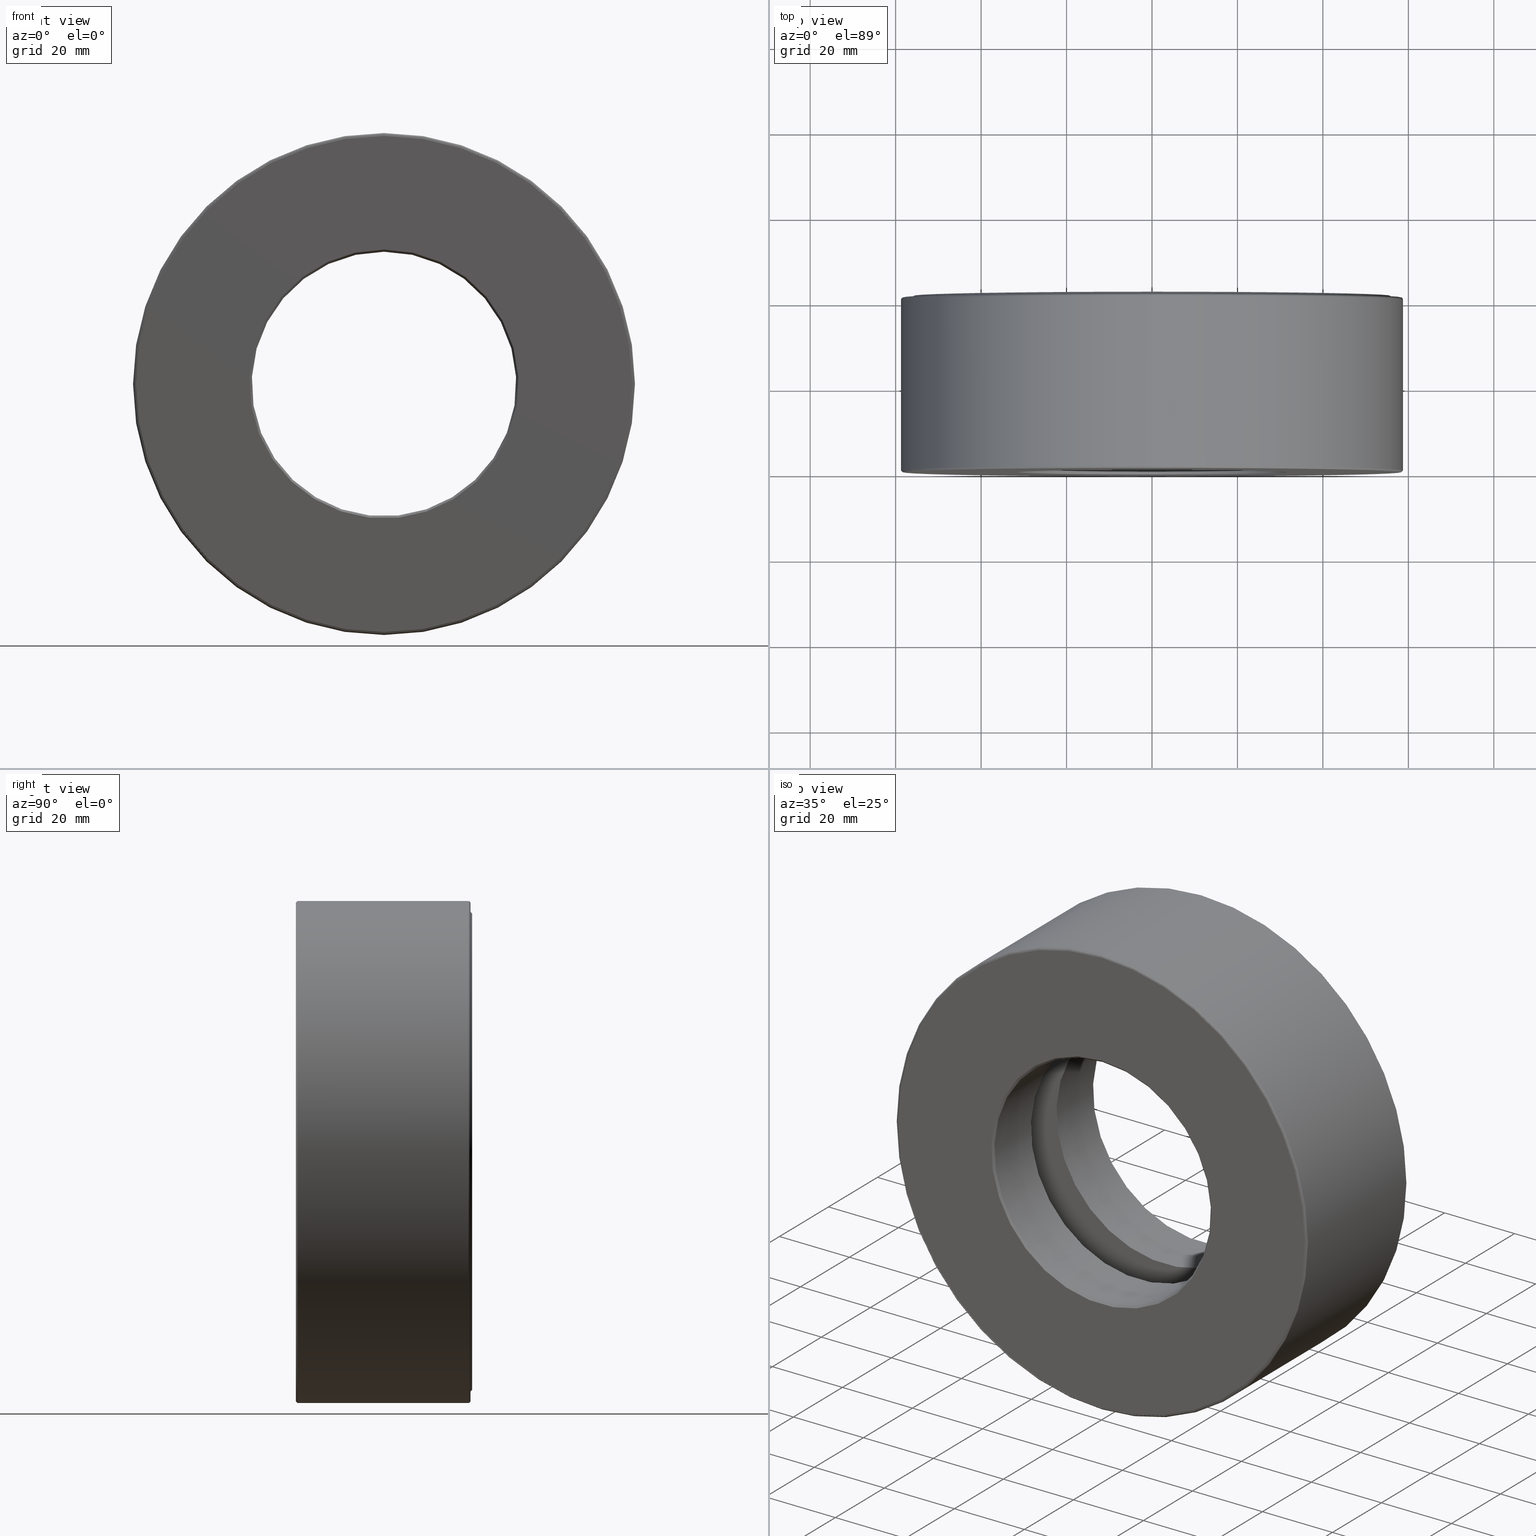
[diagram: canonical four-view strip — front | top / right | iso, engineering-drawing reading convention]
A machine part, canonical four-view strip (front | top / right | iso — engineering-drawing reading convention). The complete STEP part file that produces these views, byte-faithful:
ISO-10303-21;
HEADER;
FILE_DESCRIPTION (( 'STEP AP203' ),
    '1' );
FILE_NAME ('T-100-46.step',
    '2016-06-29T18:27:40',
    ( '' ),
    ( '' ),
    'SwSTEP 2.0',
    'SolidWorks 2016',
    '' );
FILE_SCHEMA (( 'CONFIG_CONTROL_DESIGN' ));
ENDSEC;

DATA;
#1 = CYLINDRICAL_SURFACE ( 'NONE', #538, 2.292499999999999500 ) ;
#2 = EDGE_LOOP ( 'NONE', ( #514 ) ) ;
#3 = EDGE_LOOP ( 'NONE', ( #350 ) ) ;
#4 = CARTESIAN_POINT ( 'NONE',  ( -5.459571483445795000E-032, 7.416540451549464300E-017, 0.0000000000000000000 ) ) ;
#5 =( LENGTH_UNIT ( ) NAMED_UNIT ( * ) SI_UNIT ( $, .METRE. ) );
#6 = DIRECTION ( 'NONE',  ( -0.0000000000000000000, 1.000000000000000000, -0.0000000000000000000 ) ) ;
#7 = DIRECTION ( 'NONE',  ( 0.0000000000000000000, 0.0000000000000000000, 1.000000000000000000 ) ) ;
#8 = FACE_BOUND ( 'NONE', #513, .T. ) ;
#9 = EDGE_LOOP ( 'NONE', ( #443 ) ) ;
#10 = MANIFOLD_SOLID_BREP ( 'BALLS[3]', #405 ) ;
#11 = DIRECTION ( 'NONE',  ( 0.0000000000000000000, 0.0000000000000000000, 1.000000000000000000 ) ) ;
#12 = COORDINATED_UNIVERSAL_TIME_OFFSET ( 5, 0, .BEHIND. ) ;
#13 = VERTEX_POINT ( 'NONE', #337 ) ;
#14 = CIRCLE ( 'NONE', #31, 1.238750000000000000 ) ;
#15 = AXIS2_PLACEMENT_3D ( 'NONE', #107, #472, #521 ) ;
#16 = ORIENTED_EDGE ( 'NONE', *, *, #184, .F. ) ;
#17 = APPROVAL_ROLE ( '' ) ;
#18 = APPLICATION_PROTOCOL_DEFINITION ( 'international standard', 'config_control_design', 1994, #439 ) ;
#19 = AXIS2_PLACEMENT_3D ( 'NONE', #145, #105, #606 ) ;
#20 = CARTESIAN_POINT ( 'NONE',  ( 0.0000000000000000000, 0.6062500000000001800, 0.0000000000000000000 ) ) ;
#21 = VERTEX_POINT ( 'NONE', #509 ) ;
#22 = EDGE_CURVE ( 'NONE', #67, #67, #270, .T. ) ;
#23 = FACE_BOUND ( 'NONE', #329, .T. ) ;
#24 = DIRECTION ( 'NONE',  ( -0.0000000000000000000, 1.000000000000000000, -0.0000000000000000000 ) ) ;
#25 = AXIS2_PLACEMENT_3D ( 'NONE', #169, #588, #262 ) ;
#26 = PERSON_AND_ORGANIZATION ( #407, #165 ) ;
#27 = CARTESIAN_POINT ( 'NONE',  ( 0.0000000000000000000, 1.018749999999999800, 0.0000000000000000000 ) ) ;
#28 = FACE_BOUND ( 'NONE', #260, .T. ) ;
#29 = DIRECTION ( 'NONE',  ( 0.0000000000000000000, -1.000000000000000000, 0.0000000000000000000 ) ) ;
#30 = ORIENTED_EDGE ( 'NONE', *, *, #348, .T. ) ;
#31 = AXIS2_PLACEMENT_3D ( 'NONE', #453, #591, #313 ) ;
#32 = DIRECTION ( 'NONE',  ( -0.0000000000000000000, 1.000000000000000000, -0.0000000000000000000 ) ) ;
#33 = ORIENTED_EDGE ( 'NONE', *, *, #298, .F. ) ;
#34 = DIRECTION ( 'NONE',  ( 0.0000000000000000000, -1.000000000000000000, 0.0000000000000000000 ) ) ;
#35 = CARTESIAN_POINT ( 'NONE',  ( 0.0000000000000000000, 1.589999999999999600, 0.0000000000000000000 ) ) ;
#36 = DIRECTION ( 'NONE',  ( 0.0000000000000000000, 0.0000000000000000000, 1.000000000000000000 ) ) ;
#37 = LOCAL_TIME ( 14, 27, 40.00000000000000000, #403 ) ;
#38 = CIRCLE ( 'NONE', #85, 1.218750000000000000 ) ;
#39 = FACE_OUTER_BOUND ( 'NONE', #442, .T. ) ;
#40 = AXIS2_PLACEMENT_3D ( 'NONE', #390, #332, #478 ) ;
#41 = EDGE_CURVE ( 'NONE', #194, #194, #14, .T. ) ;
#42 = ADVANCED_FACE ( 'NONE', ( #166, #188 ), #171, .T. ) ;
#43 = DIRECTION ( 'NONE',  ( 0.0000000000000000000, 0.0000000000000000000, 1.000000000000000000 ) ) ;
#44 = CARTESIAN_POINT ( 'NONE',  ( 0.0000000000000000000, 1.536999999999999500, 0.0000000000000000000 ) ) ;
#45 = CIRCLE ( 'NONE', #506, 1.664749999999999700 ) ;
#46 = ORIENTED_EDGE ( 'NONE', *, *, #389, .F. ) ;
#47 = EDGE_LOOP ( 'NONE', ( #291 ) ) ;
#48 = AXIS2_PLACEMENT_3D ( 'NONE', #296, #71, #598 ) ;
#49 = DIRECTION ( 'NONE',  ( 0.0000000000000000000, 0.0000000000000000000, 1.000000000000000000 ) ) ;
#50 = AXIS2_PLACEMENT_3D ( 'NONE', #456, #497, #359 ) ;
#51 = DIRECTION ( 'NONE',  ( 0.0000000000000000000, 0.0000000000000000000, 1.000000000000000000 ) ) ;
#52 = ORIENTED_EDGE ( 'NONE', *, *, #573, .T. ) ;
#53 = CARTESIAN_POINT ( 'NONE',  ( 0.0000000000000000000, 0.02000000000000060800, 0.0000000000000000000 ) ) ;
#54 = CARTESIAN_POINT ( 'NONE',  ( 0.0000000000000000000, 1.589999999999999600, 2.312500000000000000 ) ) ;
#55 = EDGE_CURVE ( 'NONE', #293, #293, #138, .T. ) ;
#56 = DIRECTION ( 'NONE',  ( 0.0000000000000000000, -1.000000000000000000, 0.0000000000000000000 ) ) ;
#57 = DIRECTION ( 'NONE',  ( 0.0000000000000000000, 0.0000000000000000000, 1.000000000000000000 ) ) ;
#58 = AXIS2_PLACEMENT_3D ( 'NONE', #286, #56, #344 ) ;
#59 = FACE_OUTER_BOUND ( 'NONE', #47, .T. ) ;
#60 = FACE_OUTER_BOUND ( 'NONE', #413, .T. ) ;
#61 = ORIENTED_EDGE ( 'NONE', *, *, #488, .F. ) ;
#62 = PERSON_AND_ORGANIZATION_ROLE ( 'creator' ) ;
#63 = EDGE_CURVE ( 'NONE', #21, #21, #160, .T. ) ;
#64 = CALENDAR_DATE ( 2016, 29, 6 ) ;
#65 = CARTESIAN_POINT ( 'NONE',  ( 0.0000000000000000000, -1.259211184579621700E-016, 0.0000000000000000000 ) ) ;
#66 = PERSON_AND_ORGANIZATION_ROLE ( 'creator' ) ;
#67 = VERTEX_POINT ( 'NONE', #91 ) ;
#68 = ORIENTED_EDGE ( 'NONE', *, *, #22, .T. ) ;
#69 = SECURITY_CLASSIFICATION_LEVEL ( 'unclassified' ) ;
#70 = ORIENTED_EDGE ( 'NONE', *, *, #55, .T. ) ;
#71 = DIRECTION ( 'NONE',  ( -0.0000000000000000000, 1.000000000000000000, -0.0000000000000000000 ) ) ;
#72 = AXIS2_PLACEMENT_3D ( 'NONE', #207, #283, #114 ) ;
#73 = CALENDAR_DATE ( 2016, 29, 6 ) ;
#74 = CIRCLE ( 'NONE', #569, 2.287499999999999600 ) ;
#75 = DIRECTION ( 'NONE',  ( 0.0000000000000000000, -0.0000000000000000000, -1.000000000000000000 ) ) ;
#76 = ORIENTED_EDGE ( 'NONE', *, *, #325, .T. ) ;
#77 = DIRECTION ( 'NONE',  ( 0.0000000000000000000, 0.0000000000000000000, 1.000000000000000000 ) ) ;
#78 = DIRECTION ( 'NONE',  ( 0.0000000000000000000, 0.0000000000000000000, -1.000000000000000000 ) ) ;
#79 = AXIS2_PLACEMENT_3D ( 'NONE', #402, #34, #133 ) ;
#80 = DIRECTION ( 'NONE',  ( 0.0000000000000000000, 0.0000000000000000000, 1.000000000000000000 ) ) ;
#81 = ADVANCED_FACE ( 'NONE', ( #226, #8 ), #177, .F. ) ;
#82 = CARTESIAN_POINT ( 'NONE',  ( 0.0000000000000000000, 1.625000000000000200, 0.0000000000000000000 ) ) ;
#83 = VERTEX_POINT ( 'NONE', #423 ) ;
#84 = EDGE_LOOP ( 'NONE', ( #214 ) ) ;
#85 = AXIS2_PLACEMENT_3D ( 'NONE', #590, #32, #489 ) ;
#86 = DIRECTION ( 'NONE',  ( 0.0000000000000000000, 0.0000000000000000000, 1.000000000000000000 ) ) ;
#87 = CLOSED_SHELL ( 'NONE', ( #602 ) ) ;
#88 = ADVANCED_FACE ( 'NONE', ( #595, #485 ), #135, .F. ) ;
#89 = CARTESIAN_POINT ( 'NONE',  ( 0.0000000000000000000, 0.6062500000000001800, 1.664749999999999700 ) ) ;
#90 = DIRECTION ( 'NONE',  ( -0.0000000000000000000, 1.000000000000000000, -0.0000000000000000000 ) ) ;
#91 = CARTESIAN_POINT ( 'NONE',  ( 0.0000000000000000000, 1.589999999999999600, 2.292500000000000000 ) ) ;
#92 = ADVANCED_FACE ( 'NONE', ( #367, #469 ), #284, .T. ) ;
#93 = COORDINATED_UNIVERSAL_TIME_OFFSET ( 5, 0, .BEHIND. ) ;
#94 = FACE_BOUND ( 'NONE', #457, .T. ) ;
#95 = ADVANCED_FACE ( 'NONE', ( #39, #321 ), #273, .T. ) ;
#96 = EDGE_LOOP ( 'NONE', ( #52 ) ) ;
#97 = AXIS2_PLACEMENT_3D ( 'NONE', #545, #314, #36 ) ;
#98 = ADVANCED_FACE ( 'NONE', ( #94, #336 ), #386, .F. ) ;
#99 = DIRECTION ( 'NONE',  ( -0.0000000000000000000, 1.000000000000000000, -0.0000000000000000000 ) ) ;
#100 = AXIS2_PLACEMENT_3D ( 'NONE', #216, #305, #77 ) ;
#101 = PERSON_AND_ORGANIZATION ( #407, #165 ) ;
#102 = FACE_OUTER_BOUND ( 'NONE', #119, .T. ) ;
#103 = EDGE_LOOP ( 'NONE', ( #295 ) ) ;
#104 = CARTESIAN_POINT ( 'NONE',  ( 0.0000000000000000000, 0.6062500000000002900, 1.218750000000000000 ) ) ;
#105 = DIRECTION ( 'NONE',  ( -0.0000000000000000000, 1.000000000000000000, -0.0000000000000000000 ) ) ;
#106 =( NAMED_UNIT ( * ) PLANE_ANGLE_UNIT ( ) SI_UNIT ( $, .RADIAN. ) );
#107 = CARTESIAN_POINT ( 'NONE',  ( 0.0000000000000000000, 0.6062499999999999600, 0.0000000000000000000 ) ) ;
#108 = AXIS2_PLACEMENT_3D ( 'NONE', #429, #473, #476 ) ;
#109 = DIRECTION ( 'NONE',  ( 0.0000000000000000000, -0.0000000000000000000, -1.000000000000000000 ) ) ;
#110 = CONICAL_SURFACE ( 'NONE', #79, 2.197499999999999300, 0.7853981633974466100 ) ;
#111 = CONICAL_SURFACE ( 'NONE', #72, 2.287499999999999600, 0.7853981633974160800 ) ;
#112 = EDGE_LOOP ( 'NONE', ( #496 ) ) ;
#113 = DIRECTION ( 'NONE',  ( 0.0000000000000000000, 0.0000000000000000000, 1.000000000000000000 ) ) ;
#114 = DIRECTION ( 'NONE',  ( 0.0000000000000000000, 0.0000000000000000000, 1.000000000000000000 ) ) ;
#115 = DATE_AND_TIME ( #64, #299 ) ;
#116 = AXIS2_PLACEMENT_3D ( 'NONE', #565, #436, #438 ) ;
#117 = FACE_OUTER_BOUND ( 'NONE', #148, .T. ) ;
#118 = FACE_BOUND ( 'NONE', #527, .T. ) ;
#119 = EDGE_LOOP ( 'NONE', ( #209 ) ) ;
#120 = AXIS2_PLACEMENT_3D ( 'NONE', #27, #309, #75 ) ;
#121 = VERTEX_POINT ( 'NONE', #199 ) ;
#122 = CIRCLE ( 'NONE', #198, 2.312500000000000000 ) ;
#123 = EDGE_LOOP ( 'NONE', ( #374 ) ) ;
#124 = MANIFOLD_SOLID_BREP ( 'BALLS[1]', #87 ) ;
#125 = CARTESIAN_POINT ( 'NONE',  ( 0.0000000000000000000, 0.0000000000000000000, 0.0000000000000000000 ) ) ;
#126 = AXIS2_PLACEMENT_3D ( 'NONE', #125, #362, #446 ) ;
#127 = DIRECTION ( 'NONE',  ( 0.0000000000000000000, 0.0000000000000000000, 1.000000000000000000 ) ) ;
#128 = PRODUCT_DEFINITION_FORMATION_WITH_SPECIFIED_SOURCE ( 'ANY', '', #495, .NOT_KNOWN. ) ;
#129 = DIRECTION ( 'NONE',  ( -0.0000000000000000000, 1.000000000000000000, -0.0000000000000000000 ) ) ;
#130 = FACE_OUTER_BOUND ( 'NONE', #112, .T. ) ;
#131 = DIRECTION ( 'NONE',  ( 0.0000000000000000000, 0.0000000000000000000, 1.000000000000000000 ) ) ;
#132 = FACE_OUTER_BOUND ( 'NONE', #328, .T. ) ;
#133 = DIRECTION ( 'NONE',  ( 0.0000000000000000000, 0.0000000000000000000, -1.000000000000000000 ) ) ;
#134 = EDGE_LOOP ( 'NONE', ( #361 ) ) ;
#135 = PLANE ( 'NONE',  #520 ) ;
#136 = DIRECTION ( 'NONE',  ( -0.0000000000000000000, 1.000000000000000000, -0.0000000000000000000 ) ) ;
#137 = CIRCLE ( 'NONE', #225, 2.285499999999999900 ) ;
#138 = CIRCLE ( 'NONE', #192, 2.292499999999999500 ) ;
#139 = AXIS2_PLACEMENT_3D ( 'NONE', #53, #292, #158 ) ;
#140 = EDGE_LOOP ( 'NONE', ( #76 ) ) ;
#141 = CARTESIAN_POINT ( 'NONE',  ( 0.0000000000000000000, 1.604999999999999300, 1.218750000000000000 ) ) ;
#142 = DIMENSIONAL_EXPONENTS ( 1.000000000000000000, 0.0000000000000000000, 0.0000000000000000000, 0.0000000000000000000, 0.0000000000000000000, 0.0000000000000000000, 0.0000000000000000000 ) ;
#143 = DIRECTION ( 'NONE',  ( 0.0000000000000000000, 0.0000000000000000000, 1.000000000000000000 ) ) ;
#144 = PERSON_AND_ORGANIZATION ( #407, #165 ) ;
#145 = CARTESIAN_POINT ( 'NONE',  ( 0.0000000000000000000, 0.8124999999999997800, 0.0000000000000000000 ) ) ;
#146 = VERTEX_POINT ( 'NONE', #603 ) ;
#147 = FACE_BOUND ( 'NONE', #548, .T. ) ;
#148 = EDGE_LOOP ( 'NONE', ( #483 ) ) ;
#149 = AXIS2_PLACEMENT_3D ( 'NONE', #174, #57, #532 ) ;
#150 = DIRECTION ( 'NONE',  ( 0.0000000000000000000, 0.0000000000000000000, 1.000000000000000000 ) ) ;
#151 = AXIS2_PLACEMENT_3D ( 'NONE', #524, #522, #341 ) ;
#152 = PERSON_AND_ORGANIZATION ( #407, #165 ) ;
#153 = SPHERICAL_SURFACE ( 'NONE', #168, 0.3437499999999998300 ) ;
#154 = CARTESIAN_POINT ( 'NONE',  ( 0.0000000000000000000, 0.0000000000000000000, 0.0000000000000000000 ) ) ;
#155 = FACE_OUTER_BOUND ( 'NONE', #183, .T. ) ;
#156 = DIRECTION ( 'NONE',  ( -0.0000000000000000000, 1.000000000000000000, -0.0000000000000000000 ) ) ;
#157 = AXIS2_PLACEMENT_3D ( 'NONE', #231, #90, #229 ) ;
#158 = DIRECTION ( 'NONE',  ( 0.0000000000000000000, 0.0000000000000000000, -1.000000000000000000 ) ) ;
#159 = PERSON_AND_ORGANIZATION_ROLE ( 'design_owner' ) ;
#160 = CIRCLE ( 'NONE', #50, 2.214750000000000000 ) ;
#161 = EDGE_LOOP ( 'NONE', ( #196 ) ) ;
#162 = DIRECTION ( 'NONE',  ( 6.982962677686265900E-015, -0.0000000000000000000, 1.000000000000000000 ) ) ;
#163 = DATE_TIME_ROLE ( 'creation_date' ) ;
#164 = ORIENTED_EDGE ( 'NONE', *, *, #477, .T. ) ;
#165 = ORGANIZATION ( 'UNSPECIFIED', 'UNSPECIFIED', '' ) ;
#166 = FACE_BOUND ( 'NONE', #96, .T. ) ;
#167 = EDGE_LOOP ( 'NONE', ( #570 ) ) ;
#168 = AXIS2_PLACEMENT_3D ( 'NONE', #408, #78, #178 ) ;
#169 = CARTESIAN_POINT ( 'NONE',  ( 0.0000000000000000000, 1.589999999999999600, 0.0000000000000000000 ) ) ;
#170 = FACE_OUTER_BOUND ( 'NONE', #557, .T. ) ;
#171 = PLANE ( 'NONE',  #376 ) ;
#172 = EDGE_LOOP ( 'NONE', ( #324 ) ) ;
#173 = DIRECTION ( 'NONE',  ( 0.0000000000000000000, 0.0000000000000000000, 1.000000000000000000 ) ) ;
#174 = CARTESIAN_POINT ( 'NONE',  ( 0.0000000000000000000, 0.0000000000000000000, 0.0000000000000000000 ) ) ;
#175 = DIRECTION ( 'NONE',  ( 1.000000000000000000, 0.0000000000000000000, -1.047444401652939800E-014 ) ) ;
#176 = CC_DESIGN_PERSON_AND_ORGANIZATION_ASSIGNMENT ( #479, #159, ( #495 ) ) ;
#177 = PLANE ( 'NONE',  #244 ) ;
#178 = DIRECTION ( 'NONE',  ( 1.000000000000000000, 0.0000000000000000000, 0.0000000000000000000 ) ) ;
#179 = ADVANCED_FACE ( 'NONE', ( #502, #519 ), #481, .F. ) ;
#180 = PERSON_AND_ORGANIZATION ( #407, #165 ) ;
#181 = VERTEX_POINT ( 'NONE', #280 ) ;
#182 = EDGE_LOOP ( 'NONE', ( #504 ) ) ;
#183 = EDGE_LOOP ( 'NONE', ( #463 ) ) ;
#184 = EDGE_CURVE ( 'NONE', #593, #593, #568, .T. ) ;
#185 = ADVANCED_FACE ( 'NONE', ( #381, #202 ), #518, .F. ) ;
#186 = CARTESIAN_POINT ( 'NONE',  ( 0.0000000000000000000, -1.259211184579621700E-016, 2.297499999999999900 ) ) ;
#187 = DATE_AND_TIME ( #516, #37 ) ;
#188 = FACE_OUTER_BOUND ( 'NONE', #203, .T. ) ;
#189 =( GEOMETRIC_REPRESENTATION_CONTEXT ( 3 ) GLOBAL_UNCERTAINTY_ASSIGNED_CONTEXT ( ( #250 ) ) GLOBAL_UNIT_ASSIGNED_CONTEXT ( ( #380, #106, #433 ) ) REPRESENTATION_CONTEXT ( 'NONE', 'WORKASPACE' ) );
#190 = ORIENTED_EDGE ( 'NONE', *, *, #488, .T. ) ;
#191 = CC_DESIGN_APPROVAL ( #304, ( #128 ) ) ;
#192 = AXIS2_PLACEMENT_3D ( 'NONE', #306, #217, #80 ) ;
#193 = LOCAL_TIME ( 14, 27, 40.00000000000000000, #233 ) ;
#194 = VERTEX_POINT ( 'NONE', #211 ) ;
#195 = ORIENTED_EDGE ( 'NONE', *, *, #204, .T. ) ;
#196 = ORIENTED_EDGE ( 'NONE', *, *, #212, .F. ) ;
#197 = DIRECTION ( 'NONE',  ( -1.000000000000000000, 0.0000000000000000000, 6.982962677686265900E-015 ) ) ;
#198 = AXIS2_PLACEMENT_3D ( 'NONE', #566, #471, #243 ) ;
#199 = CARTESIAN_POINT ( 'NONE',  ( 0.0000000000000000000, 1.018749999999999800, 2.285499999999999900 ) ) ;
#200 = CALENDAR_DATE ( 2016, 29, 6 ) ;
#201 = CARTESIAN_POINT ( 'NONE',  ( 0.0000000000000000000, 1.604999999999999300, 0.0000000000000000000 ) ) ;
#202 = FACE_OUTER_BOUND ( 'NONE', #354, .T. ) ;
#203 = EDGE_LOOP ( 'NONE', ( #16 ) ) ;
#204 = EDGE_CURVE ( 'NONE', #546, #546, #349, .T. ) ;
#205 = DIRECTION ( 'NONE',  ( -0.0000000000000000000, 1.000000000000000000, -0.0000000000000000000 ) ) ;
#206 = DIRECTION ( 'NONE',  ( -0.0000000000000000000, 1.000000000000000000, -0.0000000000000000000 ) ) ;
#207 = CARTESIAN_POINT ( 'NONE',  ( 0.0000000000000000000, -1.248539903354370400E-016, 0.0000000000000000000 ) ) ;
#208 = EDGE_LOOP ( 'NONE', ( #285 ) ) ;
#209 = ORIENTED_EDGE ( 'NONE', *, *, #277, .T. ) ;
#210 = AXIS2_PLACEMENT_3D ( 'NONE', #4, #326, #49 ) ;
#211 = CARTESIAN_POINT ( 'NONE',  ( 0.0000000000000000000, 2.731847993664263200E-016, 1.238750000000000000 ) ) ;
#212 = EDGE_CURVE ( 'NONE', #468, #468, #252, .T. ) ;
#213 = CYLINDRICAL_SURFACE ( 'NONE', #583, 1.218750000000000000 ) ;
#214 = ORIENTED_EDGE ( 'NONE', *, *, #498, .T. ) ;
#215 = AXIS2_PLACEMENT_3D ( 'NONE', #452, #323, #581 ) ;
#216 = CARTESIAN_POINT ( 'NONE',  ( 0.0000000000000000000, 1.589999999999999600, 0.0000000000000000000 ) ) ;
#217 = DIRECTION ( 'NONE',  ( -0.0000000000000000000, 1.000000000000000000, -0.0000000000000000000 ) ) ;
#218 = DATE_AND_TIME ( #200, #345 ) ;
#219 = VERTEX_POINT ( 'NONE', #416 ) ;
#220 = DIRECTION ( 'NONE',  ( -0.0000000000000000000, 1.000000000000000000, 0.0000000000000000000 ) ) ;
#221 = ORIENTED_EDGE ( 'NONE', *, *, #511, .T. ) ;
#222 = ADVANCED_FACE ( 'NONE', ( #512, #241 ), #335, .T. ) ;
#223 = EDGE_LOOP ( 'NONE', ( #68 ) ) ;
#224 = VERTEX_POINT ( 'NONE', #282 ) ;
#225 = AXIS2_PLACEMENT_3D ( 'NONE', #44, #136, #279 ) ;
#226 = FACE_OUTER_BOUND ( 'NONE', #578, .T. ) ;
#227 = CARTESIAN_POINT ( 'NONE',  ( 0.0000000000000000000, 0.005000000000000282000, 2.292499999999999500 ) ) ;
#228 = ORIENTED_EDGE ( 'NONE', *, *, #63, .F. ) ;
#229 = DIRECTION ( 'NONE',  ( 0.0000000000000000000, 0.0000000000000000000, 1.000000000000000000 ) ) ;
#230 = ADVANCED_FACE ( 'NONE', ( #155, #235 ), #213, .F. ) ;
#231 = CARTESIAN_POINT ( 'NONE',  ( 0.0000000000000000000, 1.018749999999999800, 0.0000000000000000000 ) ) ;
#232 = CARTESIAN_POINT ( 'NONE',  ( 0.0000000000000000000, 1.609999999999999700, 2.232499999999999900 ) ) ;
#233 = COORDINATED_UNIVERSAL_TIME_OFFSET ( 5, 0, .BEHIND. ) ;
#234 = CYLINDRICAL_SURFACE ( 'NONE', #126, 2.292499999999999500 ) ;
#235 = FACE_OUTER_BOUND ( 'NONE', #562, .T. ) ;
#236 = ORIENTED_EDGE ( 'NONE', *, *, #542, .T. ) ;
#237 = AXIS2_PLACEMENT_3D ( 'NONE', #393, #383, #427 ) ;
#238 = DESIGN_CONTEXT ( 'detailed design', #294, 'design' ) ;
#239 = DIRECTION ( 'NONE',  ( 0.0000000000000000000, -1.000000000000000000, 0.0000000000000000000 ) ) ;
#240 = VERTEX_POINT ( 'NONE', #104 ) ;
#241 = FACE_BOUND ( 'NONE', #541, .T. ) ;
#242 = EDGE_LOOP ( 'NONE', ( #564 ) ) ;
#243 = DIRECTION ( 'NONE',  ( 0.0000000000000000000, 0.0000000000000000000, 1.000000000000000000 ) ) ;
#244 = AXIS2_PLACEMENT_3D ( 'NONE', #491, #220, #543 ) ;
#245 = CIRCLE ( 'NONE', #157, 1.218750000000000000 ) ;
#246 = CYLINDRICAL_SURFACE ( 'NONE', #303, 2.285499999999999900 ) ;
#247 = DATE_TIME_ROLE ( 'classification_date' ) ;
#248 = CLOSED_SHELL ( 'NONE', ( #417, #185, #364, #88, #605, #266, #92, #95, #317, #81, #547, #274, #464, #307, #371, #98 ) ) ;
#249 = EDGE_CURVE ( 'NONE', #366, #366, #122, .T. ) ;
#250 = UNCERTAINTY_MEASURE_WITH_UNIT (LENGTH_MEASURE( 1.000000000000000100E-005 ), #380, 'distance_accuracy_value', 'NONE');
#251 = FACE_OUTER_BOUND ( 'NONE', #161, .T. ) ;
#252 = CIRCLE ( 'NONE', #151, 2.292499999999999500 ) ;
#253 = EDGE_LOOP ( 'NONE', ( #276 ) ) ;
#254 = AXIS2_PLACEMENT_3D ( 'NONE', #370, #6, #322 ) ;
#255 = DIRECTION ( 'NONE',  ( 1.047444401652939800E-014, 0.0000000000000000000, 1.000000000000000000 ) ) ;
#256 = LENGTH_MEASURE_WITH_UNIT ( LENGTH_MEASURE( 0.02539999999999999900 ), #5 );
#257 = CIRCLE ( 'NONE', #365, 2.292500000000000000 ) ;
#258 = CONICAL_SURFACE ( 'NONE', #108, 2.297499999999999900, 0.7853981633974440600 ) ;
#259 = CARTESIAN_POINT ( 'NONE',  ( 0.0000000000000000000, 1.018749999999999800, 0.0000000000000000000 ) ) ;
#260 = EDGE_LOOP ( 'NONE', ( #46 ) ) ;
#261 = ORIENTED_EDGE ( 'NONE', *, *, #249, .F. ) ;
#262 = DIRECTION ( 'NONE',  ( 0.0000000000000000000, 0.0000000000000000000, 1.000000000000000000 ) ) ;
#263 = ADVANCED_BREP_SHAPE_REPRESENTATION ( 'T-100-46', ( #487, #339, #449, #124, #422, #10, #149 ), #189 ) ;
#264 = ADVANCED_FACE ( 'NONE', ( ), #394, .T. ) ;
#265 = CC_DESIGN_APPROVAL ( #604, ( #334 ) ) ;
#266 = ADVANCED_FACE ( 'NONE', ( #28, #60 ), #288, .F. ) ;
#267 = AXIS2_PLACEMENT_3D ( 'NONE', #82, #357, #358 ) ;
#268 = SPHERICAL_SURFACE ( 'NONE', #271, 0.3437499999999998300 ) ;
#269 = CARTESIAN_POINT ( 'NONE',  ( 0.0000000000000000000, -1.252200176540824500E-016, 2.292499999999999500 ) ) ;
#270 = CIRCLE ( 'NONE', #100, 2.292500000000000000 ) ;
#271 = AXIS2_PLACEMENT_3D ( 'NONE', #540, #175, #255 ) ;
#272 = DIRECTION ( 'NONE',  ( -0.0000000000000000000, 1.000000000000000000, -0.0000000000000000000 ) ) ;
#273 = CYLINDRICAL_SURFACE ( 'NONE', #40, 2.312500000000000000 ) ;
#274 = ADVANCED_FACE ( 'NONE', ( #539, #147 ), #111, .T. ) ;
#275 = ORIENTED_EDGE ( 'NONE', *, *, #511, .F. ) ;
#276 = ORIENTED_EDGE ( 'NONE', *, *, #531, .T. ) ;
#277 = EDGE_CURVE ( 'NONE', #501, #501, #474, .T. ) ;
#278 = PLANE ( 'NONE',  #210 ) ;
#279 = DIRECTION ( 'NONE',  ( 0.0000000000000000000, 0.0000000000000000000, 1.000000000000000000 ) ) ;
#280 = CARTESIAN_POINT ( 'NONE',  ( 0.0000000000000000000, 1.589999999999999600, 2.232499999999999900 ) ) ;
#281 = DIRECTION ( 'NONE',  ( 0.0000000000000000000, 0.0000000000000000000, 1.000000000000000000 ) ) ;
#282 = CARTESIAN_POINT ( 'NONE',  ( 0.0000000000000000000, 1.018749999999999800, 1.218750000000000000 ) ) ;
#283 = DIRECTION ( 'NONE',  ( -0.0000000000000000000, 1.000000000000000000, -0.0000000000000000000 ) ) ;
#284 = TOROIDAL_SURFACE ( 'NONE', #384, 2.292500000000000000, 0.02000000000000005900 ) ;
#285 = ORIENTED_EDGE ( 'NONE', *, *, #477, .F. ) ;
#286 = CARTESIAN_POINT ( 'NONE',  ( -1.856707226635608000E-016, 0.6062500000000001800, 0.0000000000000000000 ) ) ;
#287 = AXIS2_PLACEMENT_3D ( 'NONE', #330, #555, #51 ) ;
#288 = PLANE ( 'NONE',  #460 ) ;
#289 = TOROIDAL_SURFACE ( 'NONE', #318, 1.939750000000000100, 0.3437500000000001700 ) ;
#290 = CIRCLE ( 'NONE', #447, 1.238750000000000200 ) ;
#291 = ORIENTED_EDGE ( 'NONE', *, *, #369, .F. ) ;
#292 = DIRECTION ( 'NONE',  ( 0.0000000000000000000, -1.000000000000000000, 0.0000000000000000000 ) ) ;
#293 = VERTEX_POINT ( 'NONE', #500 ) ;
#294 = APPLICATION_CONTEXT ( 'configuration controlled 3d designs of mechanical parts and assemblies' ) ;
#295 = ORIENTED_EDGE ( 'NONE', *, *, #325, .F. ) ;
#296 = CARTESIAN_POINT ( 'NONE',  ( 0.0000000000000000000, 0.0000000000000000000, 0.0000000000000000000 ) ) ;
#297 = AXIS2_PLACEMENT_3D ( 'NONE', #300, #537, #173 ) ;
#298 = EDGE_CURVE ( 'NONE', #347, #347, #290, .T. ) ;
#299 = LOCAL_TIME ( 14, 27, 40.00000000000000000, #12 ) ;
#300 = CARTESIAN_POINT ( 'NONE',  ( 0.0000000000000000000, 1.018749999999999800, 0.0000000000000000000 ) ) ;
#301 = FACE_OUTER_BOUND ( 'NONE', #420, .T. ) ;
#302 = ORIENTED_EDGE ( 'NONE', *, *, #212, .T. ) ;
#303 = AXIS2_PLACEMENT_3D ( 'NONE', #377, #466, #143 ) ;
#304 = APPROVAL ( #530, 'UNSPECIFIED' ) ;
#305 = DIRECTION ( 'NONE',  ( -0.0000000000000000000, 1.000000000000000000, -0.0000000000000000000 ) ) ;
#306 = CARTESIAN_POINT ( 'NONE',  ( 0.0000000000000000000, 0.6062499999999999600, 0.0000000000000000000 ) ) ;
#307 = ADVANCED_FACE ( 'NONE', ( #419, #23 ), #462, .F. ) ;
#308 = EDGE_CURVE ( 'NONE', #461, #461, #401, .T. ) ;
#309 = DIRECTION ( 'NONE',  ( 0.0000000000000000000, -1.000000000000000000, 0.0000000000000000000 ) ) ;
#310 = CC_DESIGN_PERSON_AND_ORGANIZATION_ASSIGNMENT ( #144, #342, ( #128 ) ) ;
#311 = DIRECTION ( 'NONE',  ( -0.0000000000000000000, 1.000000000000000000, -0.0000000000000000000 ) ) ;
#312 = FACE_OUTER_BOUND ( 'NONE', #2, .T. ) ;
#313 = DIRECTION ( 'NONE',  ( 0.0000000000000000000, 0.0000000000000000000, 1.000000000000000000 ) ) ;
#314 = DIRECTION ( 'NONE',  ( -0.0000000000000000000, 1.000000000000000000, -0.0000000000000000000 ) ) ;
#315 = CLOSED_SHELL ( 'NONE', ( #264 ) ) ;
#316 = PRODUCT_DEFINITION_SHAPE ( 'NONE', 'NONE',  #484 ) ;
#317 = ADVANCED_FACE ( 'NONE', ( #353, #118 ), #258, .T. ) ;
#318 = AXIS2_PLACEMENT_3D ( 'NONE', #507, #272, #150 ) ;
#319 = APPROVAL_PERSON_ORGANIZATION ( #445, #604, #17 ) ;
#320 = FACE_OUTER_BOUND ( 'NONE', #242, .T. ) ;
#321 = FACE_OUTER_BOUND ( 'NONE', #451, .T. ) ;
#322 = DIRECTION ( 'NONE',  ( 0.0000000000000000000, 0.0000000000000000000, 1.000000000000000000 ) ) ;
#323 = DIRECTION ( 'NONE',  ( -1.000000000000000000, 0.0000000000000000000, 3.491481338843133000E-015 ) ) ;
#324 = ORIENTED_EDGE ( 'NONE', *, *, #553, .T. ) ;
#325 = EDGE_CURVE ( 'NONE', #561, #561, #45, .T. ) ;
#326 = DIRECTION ( 'NONE',  ( -0.0000000000000000000, 1.000000000000000000, 0.0000000000000000000 ) ) ;
#327 = FACE_OUTER_BOUND ( 'NONE', #577, .T. ) ;
#328 = EDGE_LOOP ( 'NONE', ( #596 ) ) ;
#329 = EDGE_LOOP ( 'NONE', ( #30 ) ) ;
#330 = CARTESIAN_POINT ( 'NONE',  ( 0.0000000000000000000, 1.609999999999999700, 0.0000000000000000000 ) ) ;
#331 = CARTESIAN_POINT ( 'NONE',  ( 1.939750000000000100, 0.8124999999999997800, -1.354520185404193400E-014 ) ) ;
#332 = DIRECTION ( 'NONE',  ( -0.0000000000000000000, 1.000000000000000000, -0.0000000000000000000 ) ) ;
#333 = VERTEX_POINT ( 'NONE', #232 ) ;
#334 = SECURITY_CLASSIFICATION ( '', '', #69 ) ;
#335 = PLANE ( 'NONE',  #237 ) ;
#336 = FACE_OUTER_BOUND ( 'NONE', #140, .T. ) ;
#337 = CARTESIAN_POINT ( 'NONE',  ( 0.0000000000000000000, 1.536999999999999500, 2.285499999999999900 ) ) ;
#338 = ORIENTED_EDGE ( 'NONE', *, *, #369, .T. ) ;
#339 = MANIFOLD_SOLID_BREP ( 'Revolve2[2]', #458 ) ;
#340 = DIRECTION ( 'NONE',  ( 0.0000000000000000000, 0.0000000000000000000, 1.000000000000000000 ) ) ;
#341 = DIRECTION ( 'NONE',  ( 0.0000000000000000000, 0.0000000000000000000, 1.000000000000000000 ) ) ;
#342 = PERSON_AND_ORGANIZATION_ROLE ( 'design_supplier' ) ;
#343 = AXIS2_PLACEMENT_3D ( 'NONE', #430, #396, #340 ) ;
#344 = DIRECTION ( 'NONE',  ( 0.0000000000000000000, -0.0000000000000000000, -1.000000000000000000 ) ) ;
#345 = LOCAL_TIME ( 14, 27, 40.00000000000000000, #467 ) ;
#346 = APPROVAL_STATUS ( 'not_yet_approved' ) ;
#347 = VERTEX_POINT ( 'NONE', #552 ) ;
#348 = EDGE_CURVE ( 'NONE', #219, #219, #494, .T. ) ;
#349 = CIRCLE ( 'NONE', #550, 2.297499999999999900 ) ;
#350 = ORIENTED_EDGE ( 'NONE', *, *, #308, .F. ) ;
#351 = FACE_BOUND ( 'NONE', #253, .T. ) ;
#352 = DIRECTION ( 'NONE',  ( 0.0000000000000000000, 0.0000000000000000000, 1.000000000000000000 ) ) ;
#353 = FACE_OUTER_BOUND ( 'NONE', #382, .T. ) ;
#354 = EDGE_LOOP ( 'NONE', ( #70 ) ) ;
#355 = CC_DESIGN_DATE_AND_TIME_ASSIGNMENT ( #115, #247, ( #334 ) ) ;
#356 = DIRECTION ( 'NONE',  ( -0.0000000000000000000, 1.000000000000000000, 0.0000000000000000000 ) ) ;
#357 = DIRECTION ( 'NONE',  ( -0.0000000000000000000, 1.000000000000000000, -0.0000000000000000000 ) ) ;
#358 = DIRECTION ( 'NONE',  ( 0.0000000000000000000, 0.0000000000000000000, 1.000000000000000000 ) ) ;
#359 = DIRECTION ( 'NONE',  ( 0.0000000000000000000, 0.0000000000000000000, 1.000000000000000000 ) ) ;
#360 = FACE_OUTER_BOUND ( 'NONE', #123, .T. ) ;
#361 = ORIENTED_EDGE ( 'NONE', *, *, #184, .T. ) ;
#362 = DIRECTION ( 'NONE',  ( -0.0000000000000000000, 1.000000000000000000, -0.0000000000000000000 ) ) ;
#363 = DIRECTION ( 'NONE',  ( 0.0000000000000000000, -0.0000000000000000000, -1.000000000000000000 ) ) ;
#364 = ADVANCED_FACE ( 'NONE', ( #170, #601 ), #1, .F. ) ;
#365 = AXIS2_PLACEMENT_3D ( 'NONE', #410, #24, #493 ) ;
#366 = VERTEX_POINT ( 'NONE', #600 ) ;
#367 = FACE_OUTER_BOUND ( 'NONE', #9, .T. ) ;
#368 = ORIENTED_EDGE ( 'NONE', *, *, #55, .F. ) ;
#369 = EDGE_CURVE ( 'NONE', #146, #146, #74, .T. ) ;
#370 = CARTESIAN_POINT ( 'NONE',  ( 0.0000000000000000000, 0.0000000000000000000, 0.0000000000000000000 ) ) ;
#371 = ADVANCED_FACE ( 'NONE', ( #132, #585 ), #434, .F. ) ;
#372 = AXIS2_PLACEMENT_3D ( 'NONE', #259, #490, #86 ) ;
#373 = CIRCLE ( 'NONE', #372, 2.214750000000000000 ) ;
#374 = ORIENTED_EDGE ( 'NONE', *, *, #63, .T. ) ;
#375 = EDGE_LOOP ( 'NONE', ( #535 ) ) ;
#376 = AXIS2_PLACEMENT_3D ( 'NONE', #594, #29, #363 ) ;
#377 = CARTESIAN_POINT ( 'NONE',  ( 0.0000000000000000000, 0.0000000000000000000, 0.0000000000000000000 ) ) ;
#378 = DIRECTION ( 'NONE',  ( -0.0000000000000000000, 1.000000000000000000, -0.0000000000000000000 ) ) ;
#379 = CYLINDRICAL_SURFACE ( 'NONE', #48, 2.232499999999999900 ) ;
#380 =( CONVERSION_BASED_UNIT ( 'INCH', #256 ) LENGTH_UNIT ( ) NAMED_UNIT ( #142 ) );
#381 = FACE_BOUND ( 'NONE', #426, .T. ) ;
#382 = EDGE_LOOP ( 'NONE', ( #261 ) ) ;
#383 = DIRECTION ( 'NONE',  ( -0.0000000000000000000, 1.000000000000000000, 0.0000000000000000000 ) ) ;
#384 = AXIS2_PLACEMENT_3D ( 'NONE', #35, #129, #352 ) ;
#385 = CC_DESIGN_APPROVAL ( #400, ( #484 ) ) ;
#386 = PLANE ( 'NONE',  #58 ) ;
#387 = CARTESIAN_POINT ( 'NONE',  ( 0.0000000000000000000, 1.625000000000000000, 0.0000000000000000000 ) ) ;
#388 = APPLICATION_PROTOCOL_DEFINITION ( 'international standard', 'config_control_design', 1994, #294 ) ;
#389 = EDGE_CURVE ( 'NONE', #333, #333, #450, .T. ) ;
#390 = CARTESIAN_POINT ( 'NONE',  ( 0.0000000000000000000, 0.0000000000000000000, 0.0000000000000000000 ) ) ;
#391 = CALENDAR_DATE ( 2016, 29, 6 ) ;
#392 = SPHERICAL_SURFACE ( 'NONE', #215, 0.3437499999999998300 ) ;
#393 = CARTESIAN_POINT ( 'NONE',  ( 4.630250836719093300E-016, 1.625000000000000200, 0.0000000000000000000 ) ) ;
#394 = SPHERICAL_SURFACE ( 'NONE', #559, 0.3437499999999998300 ) ;
#395 = ORIENTED_EDGE ( 'NONE', *, *, #298, .T. ) ;
#396 = DIRECTION ( 'NONE',  ( -0.0000000000000000000, 1.000000000000000000, -0.0000000000000000000 ) ) ;
#397 = EDGE_LOOP ( 'NONE', ( #164 ) ) ;
#398 = APPROVAL_ROLE ( '' ) ;
#399 = VERTEX_POINT ( 'NONE', #54 ) ;
#400 = APPROVAL ( #576, 'UNSPECIFIED' ) ;
#401 = CIRCLE ( 'NONE', #475, 1.218750000000000000 ) ;
#402 = CARTESIAN_POINT ( 'NONE',  ( 0.0000000000000000000, 1.625000000000000200, 0.0000000000000000000 ) ) ;
#403 = COORDINATED_UNIVERSAL_TIME_OFFSET ( 5, 0, .BEHIND. ) ;
#404 = FACE_OUTER_BOUND ( 'NONE', #375, .T. ) ;
#405 = CLOSED_SHELL ( 'NONE', ( #551 ) ) ;
#406 = CLOSED_SHELL ( 'NONE', ( #503 ) ) ;
#407 = PERSON ( 'UNSPECIFIED', 'UNSPECIFIED', 'UNSPECIFIED', ('UNSPECIFIED'), ('UNSPECIFIED'), ('UNSPECIFIED') ) ;
#408 = CARTESIAN_POINT ( 'NONE',  ( -1.939750000000000100, 0.8124999999999997800, 0.0000000000000000000 ) ) ;
#409 = ADVANCED_FACE ( 'NONE', ( #301, #404 ), #246, .T. ) ;
#410 = CARTESIAN_POINT ( 'NONE',  ( 0.0000000000000000000, 1.609999999999999700, 0.0000000000000000000 ) ) ;
#411 = FACE_BOUND ( 'NONE', #182, .T. ) ;
#412 = ORIENTED_EDGE ( 'NONE', *, *, #573, .F. ) ;
#413 = EDGE_LOOP ( 'NONE', ( #236 ) ) ;
#414 = CARTESIAN_POINT ( 'NONE',  ( 0.0000000000000000000, 1.018749999999999800, 1.664749999999999700 ) ) ;
#415 = CC_DESIGN_PERSON_AND_ORGANIZATION_ASSIGNMENT ( #152, #62, ( #484 ) ) ;
#416 = CARTESIAN_POINT ( 'NONE',  ( 0.0000000000000000000, 0.02000000000000060800, 1.218749999999999800 ) ) ;
#417 = ADVANCED_FACE ( 'NONE', ( #556, #360 ), #525, .F. ) ;
#418 = DIRECTION ( 'NONE',  ( -0.0000000000000000000, 1.000000000000000000, -0.0000000000000000000 ) ) ;
#419 = FACE_OUTER_BOUND ( 'NONE', #425, .T. ) ;
#420 = EDGE_LOOP ( 'NONE', ( #221 ) ) ;
#421 = DIRECTION ( 'NONE',  ( 0.0000000000000000000, 0.0000000000000000000, 1.000000000000000000 ) ) ;
#422 = MANIFOLD_SOLID_BREP ( 'BALLS[2]', #315 ) ;
#423 = CARTESIAN_POINT ( 'NONE',  ( 0.0000000000000000000, 1.625000000000000200, 2.197499999999999300 ) ) ;
#424 = VERTEX_POINT ( 'NONE', #515 ) ;
#425 = EDGE_LOOP ( 'NONE', ( #482 ) ) ;
#426 = EDGE_LOOP ( 'NONE', ( #228 ) ) ;
#427 = DIRECTION ( 'NONE',  ( 0.0000000000000000000, 0.0000000000000000000, 1.000000000000000000 ) ) ;
#428 = DIRECTION ( 'NONE',  ( 0.0000000000000000000, 0.0000000000000000000, 1.000000000000000000 ) ) ;
#429 = CARTESIAN_POINT ( 'NONE',  ( 0.0000000000000000000, -1.259211184579621700E-016, 0.0000000000000000000 ) ) ;
#430 = CARTESIAN_POINT ( 'NONE',  ( 0.0000000000000000000, 1.604999999999999300, 0.0000000000000000000 ) ) ;
#431 = CARTESIAN_POINT ( 'NONE',  ( 0.0000000000000000000, 1.609999999999999700, 0.0000000000000000000 ) ) ;
#432 = APPROVAL_DATE_TIME ( #218, #604 ) ;
#433 =( NAMED_UNIT ( * ) SI_UNIT ( $, .STERADIAN. ) SOLID_ANGLE_UNIT ( ) );
#434 = CYLINDRICAL_SURFACE ( 'NONE', #254, 1.218750000000000000 ) ;
#435 = EDGE_LOOP ( 'NONE', ( #190 ) ) ;
#436 = DIRECTION ( 'NONE',  ( -0.0000000000000000000, 1.000000000000000000, -0.0000000000000000000 ) ) ;
#437 = AXIS2_PLACEMENT_3D ( 'NONE', #574, #206, #428 ) ;
#438 = DIRECTION ( 'NONE',  ( 0.0000000000000000000, 0.0000000000000000000, 1.000000000000000000 ) ) ;
#439 = APPLICATION_CONTEXT ( 'configuration controlled 3d designs of mechanical parts and assemblies' ) ;
#440 = VERTEX_POINT ( 'NONE', #563 ) ;
#441 = DIRECTION ( 'NONE',  ( -0.0000000000000000000, 1.000000000000000000, -0.0000000000000000000 ) ) ;
#442 = EDGE_LOOP ( 'NONE', ( #534 ) ) ;
#443 = ORIENTED_EDGE ( 'NONE', *, *, #542, .F. ) ;
#444 = CARTESIAN_POINT ( 'NONE',  ( 0.0000000000000000000, 0.0000000000000000000, 0.0000000000000000000 ) ) ;
#445 = PERSON_AND_ORGANIZATION ( #407, #165 ) ;
#446 = DIRECTION ( 'NONE',  ( 0.0000000000000000000, 0.0000000000000000000, 1.000000000000000000 ) ) ;
#447 = AXIS2_PLACEMENT_3D ( 'NONE', #387, #156, #7 ) ;
#448 = FACE_OUTER_BOUND ( 'NONE', #134, .T. ) ;
#449 = MANIFOLD_SOLID_BREP ( 'Revolve3', #406 ) ;
#450 = CIRCLE ( 'NONE', #287, 2.232499999999999900 ) ;
#451 = EDGE_LOOP ( 'NONE', ( #587 ) ) ;
#452 = CARTESIAN_POINT ( 'NONE',  ( 6.772600927020967200E-015, 0.8124999999999997800, 1.939750000000000100 ) ) ;
#453 = CARTESIAN_POINT ( 'NONE',  ( 0.0000000000000000000, 2.731847993664263200E-016, 0.0000000000000000000 ) ) ;
#454 = PLANE ( 'NONE',  #120 ) ;
#455 = CIRCLE ( 'NONE', #267, 2.197499999999999300 ) ;
#456 = CARTESIAN_POINT ( 'NONE',  ( 0.0000000000000000000, 0.6062499999999999600, 0.0000000000000000000 ) ) ;
#457 = EDGE_LOOP ( 'NONE', ( #61 ) ) ;
#458 = CLOSED_SHELL ( 'NONE', ( #499, #459, #42, #230, #179, #222, #505, #409 ) ) ;
#459 = ADVANCED_FACE ( 'NONE', ( #448, #320 ), #289, .F. ) ;
#460 = AXIS2_PLACEMENT_3D ( 'NONE', #431, #239, #109 ) ;
#461 = VERTEX_POINT ( 'NONE', #141 ) ;
#462 = CONICAL_SURFACE ( 'NONE', #139, 1.218749999999999800, 0.7853981633974449500 ) ;
#463 = ORIENTED_EDGE ( 'NONE', *, *, #308, .T. ) ;
#464 = ADVANCED_FACE ( 'NONE', ( #59, #411 ), #278, .F. ) ;
#465 = AXIS2_PLACEMENT_3D ( 'NONE', #582, #99, #43 ) ;
#466 = DIRECTION ( 'NONE',  ( -0.0000000000000000000, 1.000000000000000000, -0.0000000000000000000 ) ) ;
#467 = COORDINATED_UNIVERSAL_TIME_OFFSET ( 5, 0, .BEHIND. ) ;
#468 = VERTEX_POINT ( 'NONE', #269 ) ;
#469 = FACE_OUTER_BOUND ( 'NONE', #172, .T. ) ;
#470 = ORIENTED_EDGE ( 'NONE', *, *, #204, .F. ) ;
#471 = DIRECTION ( 'NONE',  ( -0.0000000000000000000, 1.000000000000000000, -0.0000000000000000000 ) ) ;
#472 = DIRECTION ( 'NONE',  ( 0.0000000000000000000, -1.000000000000000000, 0.0000000000000000000 ) ) ;
#473 = DIRECTION ( 'NONE',  ( -0.0000000000000000000, 1.000000000000000000, -0.0000000000000000000 ) ) ;
#474 = CIRCLE ( 'NONE', #116, 2.292499999999999500 ) ;
#475 = AXIS2_PLACEMENT_3D ( 'NONE', #201, #205, #11 ) ;
#476 = DIRECTION ( 'NONE',  ( 0.0000000000000000000, 0.0000000000000000000, 1.000000000000000000 ) ) ;
#477 = EDGE_CURVE ( 'NONE', #83, #83, #455, .T. ) ;
#478 = DIRECTION ( 'NONE',  ( 0.0000000000000000000, 0.0000000000000000000, 1.000000000000000000 ) ) ;
#479 = PERSON_AND_ORGANIZATION ( #407, #165 ) ;
#480 = CIRCLE ( 'NONE', #97, 2.312500000000000000 ) ;
#481 = CONICAL_SURFACE ( 'NONE', #343, 1.218750000000000000, 0.7853981633974415100 ) ;
#482 = ORIENTED_EDGE ( 'NONE', *, *, #41, .F. ) ;
#483 = ORIENTED_EDGE ( 'NONE', *, *, #498, .F. ) ;
#484 = PRODUCT_DEFINITION ( 'UNKNOWN', '', #128, #238 ) ;
#485 = FACE_BOUND ( 'NONE', #84, .T. ) ;
#486 = EDGE_LOOP ( 'NONE', ( #549 ) ) ;
#487 = MANIFOLD_SOLID_BREP ( 'Revolve2[1]', #248 ) ;
#488 = EDGE_CURVE ( 'NONE', #240, #240, #38, .T. ) ;
#489 = DIRECTION ( 'NONE',  ( 0.0000000000000000000, 0.0000000000000000000, 1.000000000000000000 ) ) ;
#490 = DIRECTION ( 'NONE',  ( -0.0000000000000000000, 1.000000000000000000, -0.0000000000000000000 ) ) ;
#491 = CARTESIAN_POINT ( 'NONE',  ( -2.750387431685207200E-032, -1.255705680560222800E-016, 0.0000000000000000000 ) ) ;
#492 = APPROVAL_PERSON_ORGANIZATION ( #101, #400, #526 ) ;
#493 = DIRECTION ( 'NONE',  ( 0.0000000000000000000, 0.0000000000000000000, 1.000000000000000000 ) ) ;
#494 = CIRCLE ( 'NONE', #465, 1.218749999999999800 ) ;
#495 = PRODUCT ( 'T-100-46', 'T-100-46', '', ( #580 ) ) ;
#496 = ORIENTED_EDGE ( 'NONE', *, *, #597, .T. ) ;
#497 = DIRECTION ( 'NONE',  ( -0.0000000000000000000, 1.000000000000000000, -0.0000000000000000000 ) ) ;
#498 = EDGE_CURVE ( 'NONE', #181, #181, #510, .T. ) ;
#499 = ADVANCED_FACE ( 'NONE', ( #351, #327 ), #454, .T. ) ;
#500 = CARTESIAN_POINT ( 'NONE',  ( 0.0000000000000000000, 0.6062499999999999600, 2.292499999999999500 ) ) ;
#501 = VERTEX_POINT ( 'NONE', #227 ) ;
#502 = FACE_OUTER_BOUND ( 'NONE', #528, .T. ) ;
#503 = ADVANCED_FACE ( 'NONE', ( ), #153, .T. ) ;
#504 = ORIENTED_EDGE ( 'NONE', *, *, #41, .T. ) ;
#505 = ADVANCED_FACE ( 'NONE', ( #130, #533 ), #110, .T. ) ;
#506 = AXIS2_PLACEMENT_3D ( 'NONE', #20, #311, #586 ) ;
#507 = CARTESIAN_POINT ( 'NONE',  ( 0.0000000000000000000, 0.8124999999999997800, 0.0000000000000000000 ) ) ;
#508 = PERSON_AND_ORGANIZATION ( #407, #165 ) ;
#509 = CARTESIAN_POINT ( 'NONE',  ( 0.0000000000000000000, 0.6062499999999999600, 2.214750000000000000 ) ) ;
#510 = CIRCLE ( 'NONE', #25, 2.232499999999999900 ) ;
#511 = EDGE_CURVE ( 'NONE', #121, #121, #584, .T. ) ;
#512 = FACE_OUTER_BOUND ( 'NONE', #397, .T. ) ;
#513 = EDGE_LOOP ( 'NONE', ( #302 ) ) ;
#514 = ORIENTED_EDGE ( 'NONE', *, *, #389, .T. ) ;
#515 = CARTESIAN_POINT ( 'NONE',  ( 0.0000000000000000000, 1.018749999999999800, 2.214750000000000000 ) ) ;
#516 = CALENDAR_DATE ( 2016, 29, 6 ) ;
#517 = SHAPE_DEFINITION_REPRESENTATION ( #316, #263 ) ;
#518 = PLANE ( 'NONE',  #15 ) ;
#519 = FACE_BOUND ( 'NONE', #3, .T. ) ;
#520 = AXIS2_PLACEMENT_3D ( 'NONE', #536, #356, #127 ) ;
#521 = DIRECTION ( 'NONE',  ( 0.0000000000000000000, -0.0000000000000000000, -1.000000000000000000 ) ) ;
#522 = DIRECTION ( 'NONE',  ( -0.0000000000000000000, 1.000000000000000000, -0.0000000000000000000 ) ) ;
#523 = APPROVAL_PERSON_ORGANIZATION ( #26, #304, #398 ) ;
#524 = CARTESIAN_POINT ( 'NONE',  ( 0.0000000000000000000, -1.252200176540824500E-016, 0.0000000000000000000 ) ) ;
#525 = TOROIDAL_SURFACE ( 'NONE', #19, 1.939750000000000100, 0.3437500000000000000 ) ;
#526 = APPROVAL_ROLE ( '' ) ;
#527 = EDGE_LOOP ( 'NONE', ( #195 ) ) ;
#528 = EDGE_LOOP ( 'NONE', ( #395 ) ) ;
#529 = PRODUCT_RELATED_PRODUCT_CATEGORY ( 'detail', '', ( #495 ) ) ;
#530 = APPROVAL_STATUS ( 'not_yet_approved' ) ;
#531 = EDGE_CURVE ( 'NONE', #424, #424, #373, .T. ) ;
#532 = DIRECTION ( 'NONE',  ( 1.000000000000000000, 0.0000000000000000000, 0.0000000000000000000 ) ) ;
#533 = FACE_BOUND ( 'NONE', #208, .T. ) ;
#534 = ORIENTED_EDGE ( 'NONE', *, *, #553, .F. ) ;
#535 = ORIENTED_EDGE ( 'NONE', *, *, #597, .F. ) ;
#536 = CARTESIAN_POINT ( 'NONE',  ( 0.0000000000000000000, 1.589999999999999600, 0.0000000000000000000 ) ) ;
#537 = DIRECTION ( 'NONE',  ( -0.0000000000000000000, 1.000000000000000000, -0.0000000000000000000 ) ) ;
#538 = AXIS2_PLACEMENT_3D ( 'NONE', #444, #575, #421 ) ;
#539 = FACE_OUTER_BOUND ( 'NONE', #486, .T. ) ;
#540 = CARTESIAN_POINT ( 'NONE',  ( -2.031780278106290500E-014, 0.8124999999999997800, -1.939750000000000100 ) ) ;
#541 = EDGE_LOOP ( 'NONE', ( #33 ) ) ;
#542 = EDGE_CURVE ( 'NONE', #440, #440, #257, .T. ) ;
#543 = DIRECTION ( 'NONE',  ( 0.0000000000000000000, 0.0000000000000000000, 1.000000000000000000 ) ) ;
#544 = APPROVAL_DATE_TIME ( #187, #400 ) ;
#545 = CARTESIAN_POINT ( 'NONE',  ( 0.0000000000000000000, 1.589999999999999600, 0.0000000000000000000 ) ) ;
#546 = VERTEX_POINT ( 'NONE', #186 ) ;
#547 = ADVANCED_FACE ( 'NONE', ( #251, #102 ), #234, .F. ) ;
#548 = EDGE_LOOP ( 'NONE', ( #338 ) ) ;
#549 = ORIENTED_EDGE ( 'NONE', *, *, #277, .F. ) ;
#550 = AXIS2_PLACEMENT_3D ( 'NONE', #65, #441, #131 ) ;
#551 = ADVANCED_FACE ( 'NONE', ( ), #268, .T. ) ;
#552 = CARTESIAN_POINT ( 'NONE',  ( 0.0000000000000000000, 1.625000000000000000, 1.238750000000000200 ) ) ;
#553 = EDGE_CURVE ( 'NONE', #399, #399, #480, .T. ) ;
#554 = LOCAL_TIME ( 14, 27, 40.00000000000000000, #93 ) ;
#555 = DIRECTION ( 'NONE',  ( -0.0000000000000000000, 1.000000000000000000, -0.0000000000000000000 ) ) ;
#556 = FACE_OUTER_BOUND ( 'NONE', #103, .T. ) ;
#557 = EDGE_LOOP ( 'NONE', ( #368 ) ) ;
#558 = CARTESIAN_POINT ( 'NONE',  ( 0.0000000000000000000, -1.248539903354370400E-016, 0.0000000000000000000 ) ) ;
#559 = AXIS2_PLACEMENT_3D ( 'NONE', #331, #162, #197 ) ;
#560 = DATE_AND_TIME ( #73, #554 ) ;
#561 = VERTEX_POINT ( 'NONE', #89 ) ;
#562 = EDGE_LOOP ( 'NONE', ( #412 ) ) ;
#563 = CARTESIAN_POINT ( 'NONE',  ( 0.0000000000000000000, 1.609999999999999700, 2.292500000000000000 ) ) ;
#564 = ORIENTED_EDGE ( 'NONE', *, *, #531, .F. ) ;
#565 = CARTESIAN_POINT ( 'NONE',  ( 0.0000000000000000000, 0.005000000000000282000, 0.0000000000000000000 ) ) ;
#566 = CARTESIAN_POINT ( 'NONE',  ( 0.0000000000000000000, 0.01499999999999997700, 0.0000000000000000000 ) ) ;
#567 = APPROVAL_DATE_TIME ( #560, #304 ) ;
#568 = CIRCLE ( 'NONE', #437, 1.664749999999999700 ) ;
#569 = AXIS2_PLACEMENT_3D ( 'NONE', #558, #418, #281 ) ;
#570 = ORIENTED_EDGE ( 'NONE', *, *, #22, .F. ) ;
#571 = PERSON_AND_ORGANIZATION_ROLE ( 'classification_officer' ) ;
#572 = CC_DESIGN_DATE_AND_TIME_ASSIGNMENT ( #592, #163, ( #484 ) ) ;
#573 = EDGE_CURVE ( 'NONE', #224, #224, #245, .T. ) ;
#574 = CARTESIAN_POINT ( 'NONE',  ( 0.0000000000000000000, 1.018749999999999800, 0.0000000000000000000 ) ) ;
#575 = DIRECTION ( 'NONE',  ( -0.0000000000000000000, 1.000000000000000000, -0.0000000000000000000 ) ) ;
#576 = APPROVAL_STATUS ( 'not_yet_approved' ) ;
#577 = EDGE_LOOP ( 'NONE', ( #275 ) ) ;
#578 = EDGE_LOOP ( 'NONE', ( #470 ) ) ;
#579 = CC_DESIGN_SECURITY_CLASSIFICATION ( #334, ( #128 ) ) ;
#580 = MECHANICAL_CONTEXT ( 'NONE', #439, 'mechanical' ) ;
#581 = DIRECTION ( 'NONE',  ( -3.491481338843133000E-015, 0.0000000000000000000, -1.000000000000000000 ) ) ;
#582 = CARTESIAN_POINT ( 'NONE',  ( 0.0000000000000000000, 0.02000000000000060800, 0.0000000000000000000 ) ) ;
#583 = AXIS2_PLACEMENT_3D ( 'NONE', #154, #378, #113 ) ;
#584 = CIRCLE ( 'NONE', #297, 2.285499999999999900 ) ;
#585 = FACE_OUTER_BOUND ( 'NONE', #435, .T. ) ;
#586 = DIRECTION ( 'NONE',  ( 0.0000000000000000000, 0.0000000000000000000, 1.000000000000000000 ) ) ;
#587 = ORIENTED_EDGE ( 'NONE', *, *, #249, .T. ) ;
#588 = DIRECTION ( 'NONE',  ( -0.0000000000000000000, 1.000000000000000000, -0.0000000000000000000 ) ) ;
#589 = CC_DESIGN_PERSON_AND_ORGANIZATION_ASSIGNMENT ( #508, #571, ( #334 ) ) ;
#590 = CARTESIAN_POINT ( 'NONE',  ( 0.0000000000000000000, 0.6062500000000002900, 0.0000000000000000000 ) ) ;
#591 = DIRECTION ( 'NONE',  ( -0.0000000000000000000, 1.000000000000000000, -0.0000000000000000000 ) ) ;
#592 = DATE_AND_TIME ( #391, #193 ) ;
#593 = VERTEX_POINT ( 'NONE', #414 ) ;
#594 = CARTESIAN_POINT ( 'NONE',  ( 0.0000000000000000000, 1.018749999999999800, 0.0000000000000000000 ) ) ;
#595 = FACE_OUTER_BOUND ( 'NONE', #167, .T. ) ;
#596 = ORIENTED_EDGE ( 'NONE', *, *, #348, .F. ) ;
#597 = EDGE_CURVE ( 'NONE', #13, #13, #137, .T. ) ;
#598 = DIRECTION ( 'NONE',  ( 0.0000000000000000000, 0.0000000000000000000, 1.000000000000000000 ) ) ;
#599 = CC_DESIGN_PERSON_AND_ORGANIZATION_ASSIGNMENT ( #180, #66, ( #128 ) ) ;
#600 = CARTESIAN_POINT ( 'NONE',  ( 0.0000000000000000000, 0.01499999999999997700, 2.312500000000000000 ) ) ;
#601 = FACE_OUTER_BOUND ( 'NONE', #223, .T. ) ;
#602 = ADVANCED_FACE ( 'NONE', ( ), #392, .T. ) ;
#603 = CARTESIAN_POINT ( 'NONE',  ( 0.0000000000000000000, -1.248539903354370400E-016, 2.287499999999999600 ) ) ;
#604 = APPROVAL ( #346, 'UNSPECIFIED' ) ;
#605 = ADVANCED_FACE ( 'NONE', ( #117, #312 ), #379, .F. ) ;
#606 = DIRECTION ( 'NONE',  ( 0.0000000000000000000, 0.0000000000000000000, 1.000000000000000000 ) ) ;
ENDSEC;
END-ISO-10303-21;
